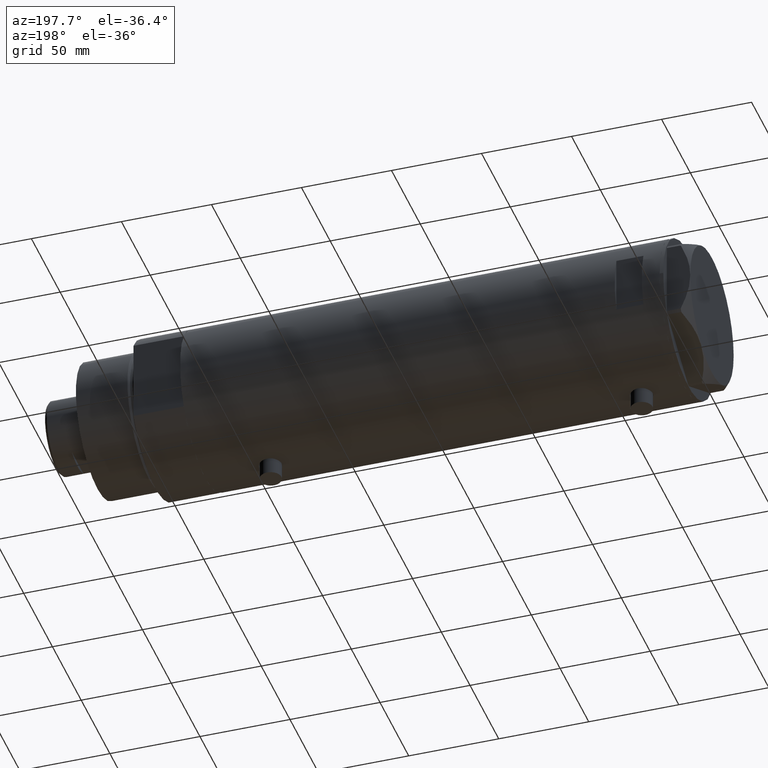
[diagram: clean part render]
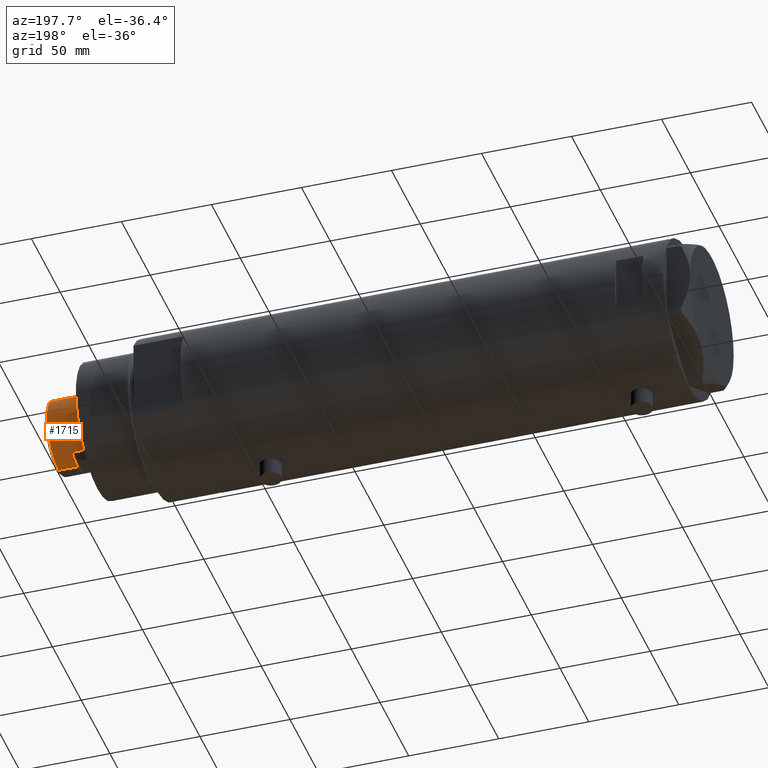
[diagram: same view with one face highlighted and labeled with its STEP entity id]
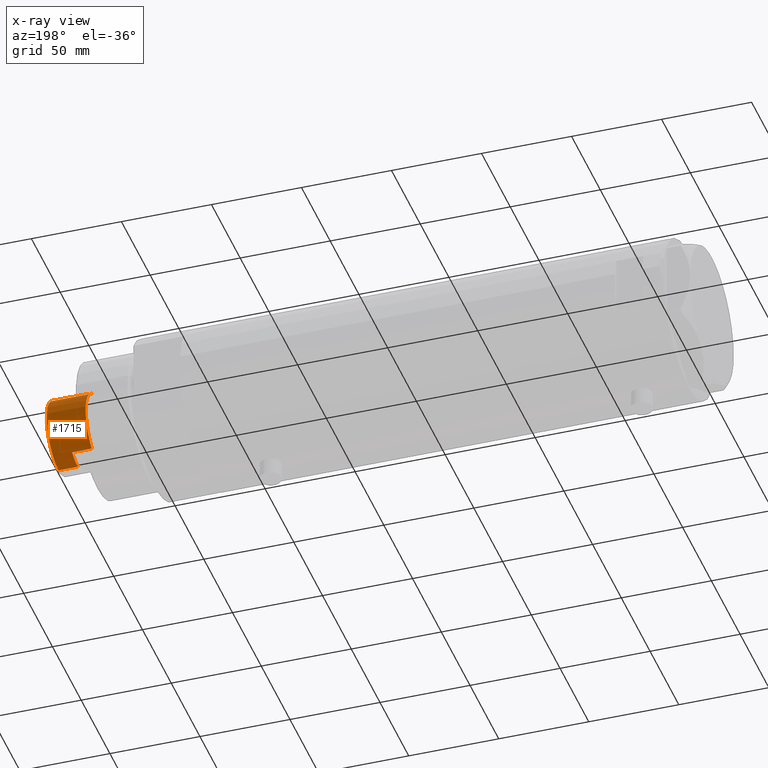
[diagram: x-ray of the same camera — body ghosted, the highlighted face saturated]
A machine part, auxiliary view. The second image highlights one B-rep face of the part: STEP entity #1715.
The next image is the same camera in x-ray: the body ghosted, the highlighted face saturated — about 0% of this face is hidden behind the body in this view.
In plain terms, the highlighted cylindrical surface (partial cylindrical patch) has radius 20.5 mm, axis along (-1, -0, 0).
Its self-contained STEP definition (entity closure, byte-faithful):
#38 = CARTESIAN_POINT ( 'NONE',  ( 0.000000000000000000, 0.000000000000000000, 300.3000000000000114 ) ) ;
#65 = VECTOR ( 'NONE', #2010, 1000.000000000000000 ) ;
#196 = ORIENTED_EDGE ( 'NONE', *, *, #643, .T. ) ;
#214 = DIRECTION ( 'NONE',  ( 1.000000000000000000, 0.000000000000000000, 0.000000000000000000 ) ) ;
#467 = CARTESIAN_POINT ( 'NONE',  ( 0.000000000000000000, 0.000000000000000000, 311.3000000000000114 ) ) ;
#505 = EDGE_CURVE ( 'NONE', #2745, #530, #1001, .T. ) ;
#530 = VERTEX_POINT ( 'NONE', #3371 ) ;
#541 = LINE ( 'NONE', #2685, #65 ) ;
#548 = DIRECTION ( 'NONE',  ( -0.000000000000000000, -0.000000000000000000, -1.000000000000000000 ) ) ;
#610 = CARTESIAN_POINT ( 'NONE',  ( 0.000000000000000000, 0.000000000000000000, 321.9000000000000909 ) ) ;
#643 = EDGE_CURVE ( 'NONE', #3049, #2745, #2159, .T. ) ;
#728 = VERTEX_POINT ( 'NONE', #2282 ) ;
#749 = CARTESIAN_POINT ( 'NONE',  ( 17.97852886083842705, 9.849999999999997868, 311.3000000000000114 ) ) ;
#764 = DIRECTION ( 'NONE',  ( -0.000000000000000000, -0.000000000000000000, -1.000000000000000000 ) ) ;
#795 = AXIS2_PLACEMENT_3D ( 'NONE', #610, #2008, #214 ) ;
#847 = VECTOR ( 'NONE', #2852, 1000.000000000000000 ) ;
#967 = ORIENTED_EDGE ( 'NONE', *, *, #3223, .T. ) ;
#1001 = CIRCLE ( 'NONE', #1948, 20.49999999999998934 ) ;
#1073 = CARTESIAN_POINT ( 'NONE',  ( 20.50000000000000000, 2.510525938252074481E-15, 311.3000000000000114 ) ) ;
#1144 = AXIS2_PLACEMENT_3D ( 'NONE', #467, #764, #1863 ) ;
#1219 = AXIS2_PLACEMENT_3D ( 'NONE', #1619, #3452, #2988 ) ;
#1387 = VECTOR ( 'NONE', #3183, 1000.000000000000000 ) ;
#1597 = DIRECTION ( 'NONE',  ( 0.000000000000000000, 0.000000000000000000, 1.000000000000000000 ) ) ;
#1619 = CARTESIAN_POINT ( 'NONE',  ( 0.000000000000000000, 0.000000000000000000, 311.3000000000000114 ) ) ;
#1634 = CARTESIAN_POINT ( 'NONE',  ( -17.97852886083842705, 9.849999999999997868, 311.3000000000000114 ) ) ;
#1652 = CARTESIAN_POINT ( 'NONE',  ( -20.50000000000000355, 0.000000000000000000, 321.9000000000000909 ) ) ;
#1683 = CARTESIAN_POINT ( 'NONE',  ( 17.97852886083842705, 9.849999999999997868, 300.3000000000000114 ) ) ;
#1710 = DIRECTION ( 'NONE',  ( 1.000000000000000000, 0.000000000000000000, 0.000000000000000000 ) ) ;
#1715 = ADVANCED_FACE ( 'NONE', ( #4373 ), #2941, .T. ) ;
#1732 = CIRCLE ( 'NONE', #1219, 20.50000000000000000 ) ;
#1742 = EDGE_CURVE ( 'NONE', #3279, #3049, #1732, .T. ) ;
#1814 = CARTESIAN_POINT ( 'NONE',  ( 20.50000000000000355, 2.510525938252074481E-15, 311.3000000000000114 ) ) ;
#1863 = DIRECTION ( 'NONE',  ( -1.000000000000000000, 0.000000000000000000, 0.000000000000000000 ) ) ;
#1948 = AXIS2_PLACEMENT_3D ( 'NONE', #38, #2061, #1710 ) ;
#2008 = DIRECTION ( 'NONE',  ( 0.000000000000000000, 0.000000000000000000, -1.000000000000000000 ) ) ;
#2010 = DIRECTION ( 'NONE',  ( -0.000000000000000000, -0.000000000000000000, -1.000000000000000000 ) ) ;
#2061 = DIRECTION ( 'NONE',  ( 0.000000000000000000, 0.000000000000000000, 1.000000000000000000 ) ) ;
#2148 = LINE ( 'NONE', #1814, #1387 ) ;
#2159 = LINE ( 'NONE', #749, #847 ) ;
#2282 = CARTESIAN_POINT ( 'NONE',  ( 20.50000000000000355, 2.510525938252074481E-15, 321.9000000000000909 ) ) ;
#2346 = AXIS2_PLACEMENT_3D ( 'NONE', #3274, #1597, #3411 ) ;
#2359 = CIRCLE ( 'NONE', #795, 20.50000000000000355 ) ;
#2380 = VERTEX_POINT ( 'NONE', #3791 ) ;
#2511 = VERTEX_POINT ( 'NONE', #1634 ) ;
#2685 = CARTESIAN_POINT ( 'NONE',  ( -20.50000000000000355, 0.000000000000000000, 311.3000000000000114 ) ) ;
#2745 = VERTEX_POINT ( 'NONE', #1683 ) ;
#2852 = DIRECTION ( 'NONE',  ( -0.000000000000000000, -0.000000000000000000, -1.000000000000000000 ) ) ;
#2872 = EDGE_CURVE ( 'NONE', #2511, #2380, #3167, .T. ) ;
#2941 = CYLINDRICAL_SURFACE ( 'NONE', #1144, 20.50000000000000355 ) ;
#2988 = DIRECTION ( 'NONE',  ( 1.000000000000000000, 0.000000000000000000, 0.000000000000000000 ) ) ;
#3049 = VERTEX_POINT ( 'NONE', #3125 ) ;
#3125 = CARTESIAN_POINT ( 'NONE',  ( 17.97852886083842705, 9.849999999999997868, 311.3000000000000114 ) ) ;
#3167 = CIRCLE ( 'NONE', #2346, 20.50000000000000000 ) ;
#3183 = DIRECTION ( 'NONE',  ( -0.000000000000000000, -0.000000000000000000, -1.000000000000000000 ) ) ;
#3223 = EDGE_CURVE ( 'NONE', #728, #3279, #2148, .T. ) ;
#3274 = CARTESIAN_POINT ( 'NONE',  ( 0.000000000000000000, 0.000000000000000000, 311.3000000000000114 ) ) ;
#3279 = VERTEX_POINT ( 'NONE', #1073 ) ;
#3317 = ORIENTED_EDGE ( 'NONE', *, *, #1742, .T. ) ;
#3371 = CARTESIAN_POINT ( 'NONE',  ( -17.97852886083842705, 9.849999999999965894, 300.3000000000000114 ) ) ;
#3411 = DIRECTION ( 'NONE',  ( 1.000000000000000000, 0.000000000000000000, 0.000000000000000000 ) ) ;
#3452 = DIRECTION ( 'NONE',  ( 0.000000000000000000, 0.000000000000000000, 1.000000000000000000 ) ) ;
#3539 = ORIENTED_EDGE ( 'NONE', *, *, #3635, .F. ) ;
#3563 = LINE ( 'NONE', #3698, #3682 ) ;
#3620 = ORIENTED_EDGE ( 'NONE', *, *, #4183, .T. ) ;
#3635 = EDGE_CURVE ( 'NONE', #4544, #2380, #541, .T. ) ;
#3682 = VECTOR ( 'NONE', #548, 1000.000000000000000 ) ;
#3698 = CARTESIAN_POINT ( 'NONE',  ( -17.97852886083842705, 9.849999999999997868, 311.3000000000000114 ) ) ;
#3791 = CARTESIAN_POINT ( 'NONE',  ( -20.50000000000000000, 0.000000000000000000, 311.3000000000000114 ) ) ;
#3987 = EDGE_LOOP ( 'NONE', ( #3620, #967, #3317, #196, #4249, #4446, #4375, #3539 ) ) ;
#4183 = EDGE_CURVE ( 'NONE', #4544, #728, #2359, .T. ) ;
#4249 = ORIENTED_EDGE ( 'NONE', *, *, #505, .T. ) ;
#4373 = FACE_OUTER_BOUND ( 'NONE', #3987, .T. ) ;
#4375 = ORIENTED_EDGE ( 'NONE', *, *, #2872, .T. ) ;
#4395 = EDGE_CURVE ( 'NONE', #2511, #530, #3563, .T. ) ;
#4446 = ORIENTED_EDGE ( 'NONE', *, *, #4395, .F. ) ;
#4544 = VERTEX_POINT ( 'NONE', #1652 ) ;